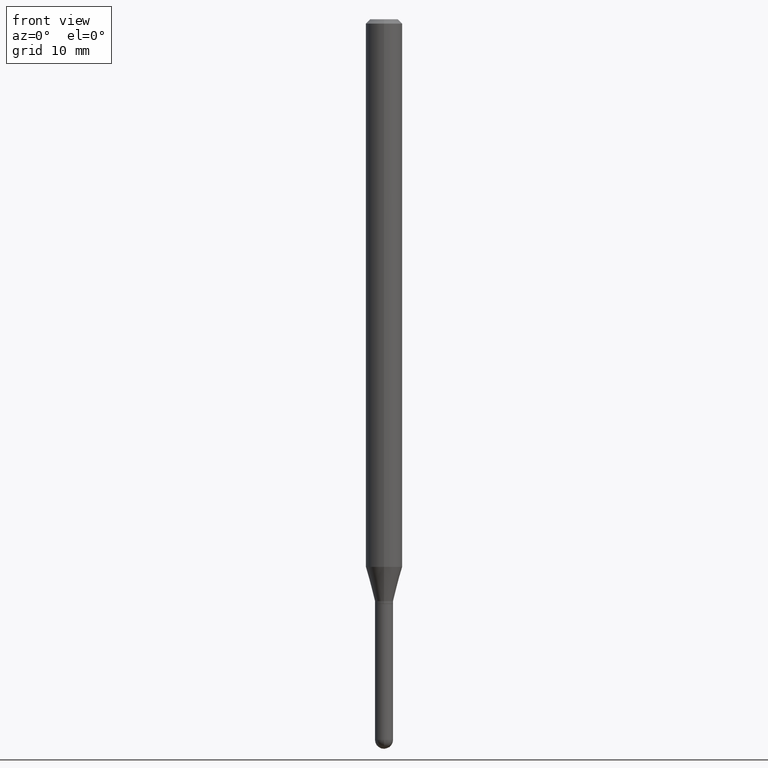
[diagram: clean part render]
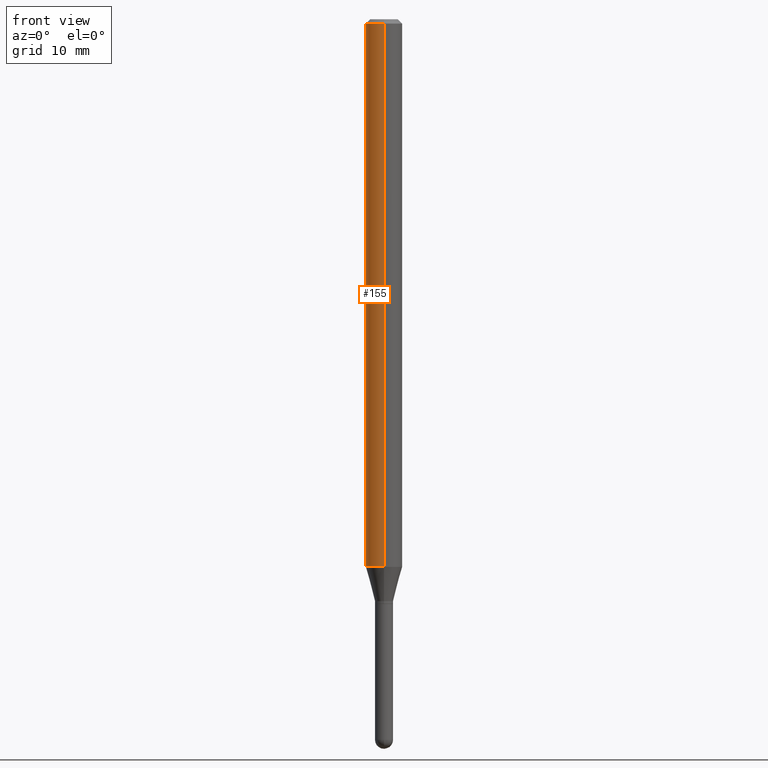
[diagram: same view with one face highlighted and labeled with its STEP entity id]
A machine part, front view. The second image highlights one B-rep face of the part: STEP entity #155.
In plain terms, the highlighted cylindrical surface (edge-blend (fillet) strip) has radius 1.5875 mm, axis along (-0, 0, 1).
Its self-contained STEP definition (entity closure, byte-faithful):
#21 = ORIENTED_EDGE ( 'NONE', *, *, #35, .T. ) ;
#35 = EDGE_CURVE ( 'NONE', #38, #274, #450, .T. ) ;
#38 = VERTEX_POINT ( 'NONE', #504 ) ;
#69 = VERTEX_POINT ( 'NONE', #198 ) ;
#83 = LINE ( 'NONE', #129, #451 ) ;
#95 = VECTOR ( 'NONE', #252, 39.37007874015748143 ) ;
#96 = CYLINDRICAL_SURFACE ( 'NONE', #218, 0.06250000000000000000 ) ;
#99 = DIRECTION ( 'NONE',  ( -6.982962677686265922E-15, -1.000000000000000000, 3.491505264276321364E-15 ) ) ;
#104 = CARTESIAN_POINT ( 'NONE',  ( 3.668178148716669734E-31, -5.237257896414485818E-17, -0.01500000000000000812 ) ) ;
#113 = CIRCLE ( 'NONE', #244, 0.06250000000000000000 ) ;
#119 = EDGE_LOOP ( 'NONE', ( #310, #21, #195, #428 ) ) ;
#129 = CARTESIAN_POINT ( 'NONE',  ( -4.364351673553916201E-16, -0.06250000000000000000, 2.182190790172700853E-16 ) ) ;
#132 = DIRECTION ( 'NONE',  ( -6.982962677686265922E-15, -1.000000000000000000, 3.483106191921935554E-15 ) ) ;
#140 = EDGE_CURVE ( 'NONE', #38, #334, #372, .T. ) ;
#155 = ADVANCED_FACE ( 'NONE', ( #220 ), #96, .T. ) ;
#175 = DIRECTION ( 'NONE',  ( -2.445452099144444878E-29, 3.491505264276321759E-15, 1.000000000000000000 ) ) ;
#177 = CARTESIAN_POINT ( 'NONE',  ( 4.440892098501086659E-16, 0.06249999999999995143, -0.01500000000000022669 ) ) ;
#191 = EDGE_CURVE ( 'NONE', #334, #69, #113, .T. ) ;
#195 = ORIENTED_EDGE ( 'NONE', *, *, #417, .T. ) ;
#198 = CARTESIAN_POINT ( 'NONE',  ( -4.364351673553912750E-16, -0.06250000000000005551, -0.01499999999999979128 ) ) ;
#218 = AXIS2_PLACEMENT_3D ( 'NONE', #414, #175, #99 ) ;
#220 = FACE_OUTER_BOUND ( 'NONE', #119, .T. ) ;
#244 = AXIS2_PLACEMENT_3D ( 'NONE', #104, #256, #132 ) ;
#252 = DIRECTION ( 'NONE',  ( -2.445452099144444878E-29, 3.491505264276321759E-15, 1.000000000000000000 ) ) ;
#256 = DIRECTION ( 'NONE',  ( -2.445452099144444878E-29, 3.491505264276321759E-15, 1.000000000000000000 ) ) ;
#274 = VERTEX_POINT ( 'NONE', #470 ) ;
#277 = DIRECTION ( 'NONE',  ( -6.982962677686265922E-15, -1.000000000000000000, 4.370956789862821150E-15 ) ) ;
#294 = CARTESIAN_POINT ( 'NONE',  ( 4.440892098500625669E-16, 0.06250000000000000000, -2.182190790172700853E-16 ) ) ;
#310 = ORIENTED_EDGE ( 'NONE', *, *, #140, .F. ) ;
#334 = VERTEX_POINT ( 'NONE', #177 ) ;
#339 = AXIS2_PLACEMENT_3D ( 'NONE', #476, #439, #277 ) ;
#372 = LINE ( 'NONE', #294, #95 ) ;
#407 = DIRECTION ( 'NONE',  ( -2.445452099144444878E-29, 3.491505264276321759E-15, 1.000000000000000000 ) ) ;
#414 = CARTESIAN_POINT ( 'NONE',  ( 0.000000000000000000, 0.000000000000000000, 0.000000000000000000 ) ) ;
#417 = EDGE_CURVE ( 'NONE', #274, #69, #83, .T. ) ;
#428 = ORIENTED_EDGE ( 'NONE', *, *, #191, .F. ) ;
#439 = DIRECTION ( 'NONE',  ( -2.445452099144444878E-29, 3.491505264276321759E-15, 1.000000000000000000 ) ) ;
#450 = CIRCLE ( 'NONE', #339, 0.06250000000000000000 ) ;
#451 = VECTOR ( 'NONE', #407, 39.37007874015748143 ) ;
#470 = CARTESIAN_POINT ( 'NONE',  ( -4.364351673553459155E-16, -0.06250000000000657807, -1.876440399561581263 ) ) ;
#476 = CARTESIAN_POINT ( 'NONE',  ( 4.588745114027310997E-29, -6.551601533170026428E-15, -1.876440399561581485 ) ) ;
#504 = CARTESIAN_POINT ( 'NONE',  ( 4.440892098501081729E-16, 0.06249999999999341499, -1.876440399561581707 ) ) ;